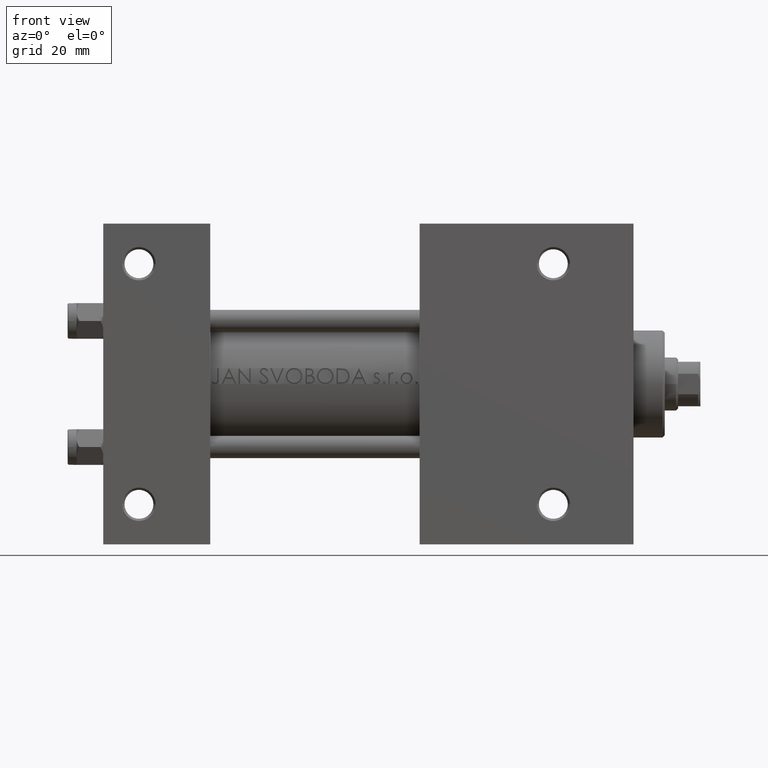
[diagram: clean part render]
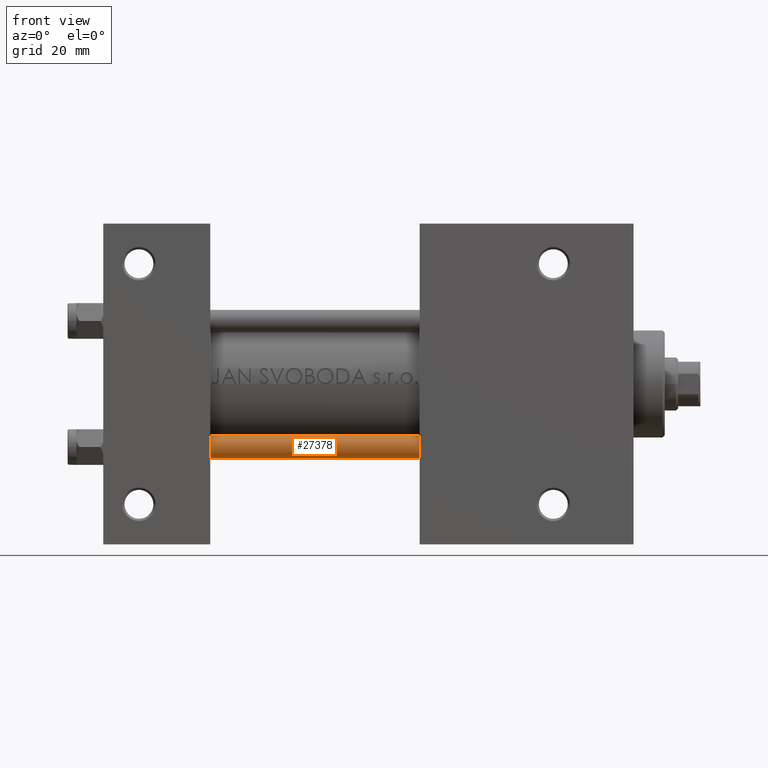
[diagram: same view with one face highlighted and labeled with its STEP entity id]
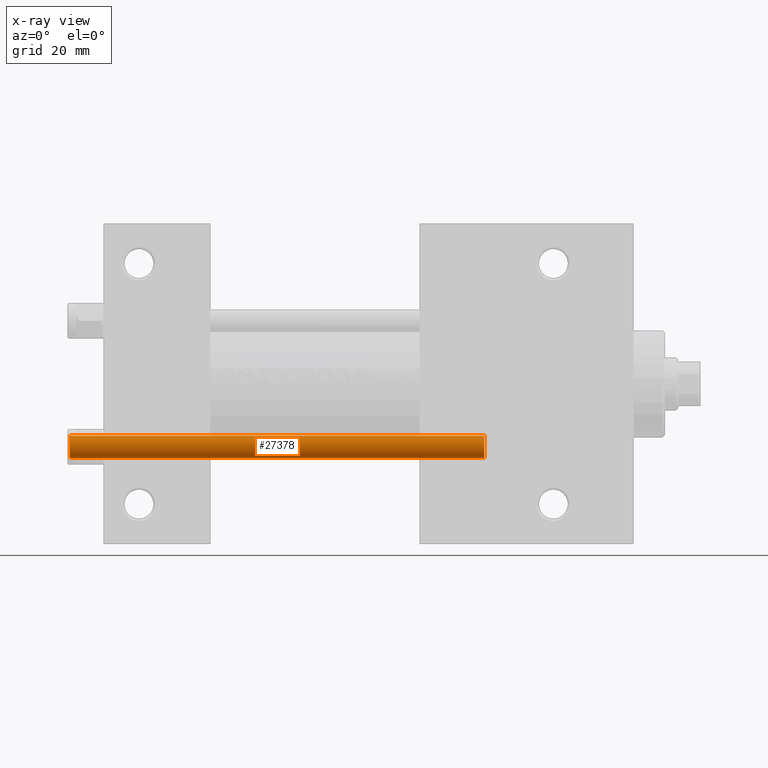
[diagram: x-ray of the same camera — body ghosted, the highlighted face saturated]
A machine part, front view. The second image highlights one B-rep face of the part: STEP entity #27378.
The next image is the same camera in x-ray: the body ghosted, the highlighted face saturated — about 0% of this face is hidden behind the body in this view.
In plain terms, the highlighted cylindrical surface (edge-blend (fillet) strip) has radius 2.5 mm, axis along (-1, 0, 0).
Its self-contained STEP definition (entity closure, byte-faithful):
#243 = CARTESIAN_POINT ( 'NONE',  ( 0.000000000000000000, 0.000000000000000000, 94.00000000000000000 ) ) ;
#715 = CYLINDRICAL_SURFACE ( 'NONE', #46674, 2.500000000000000000 ) ;
#1252 = CARTESIAN_POINT ( 'NONE',  ( -2.500000000000000000, 0.000000000000000000, 94.00000000000000000 ) ) ;
#2686 = CARTESIAN_POINT ( 'NONE',  ( -2.500000000000000000, 0.000000000000000000, 93.50000000000001421 ) ) ;
#3548 = CARTESIAN_POINT ( 'NONE',  ( 2.500000000000000000, 3.061616997868383141E-16, 0.5000000000000004441 ) ) ;
#4022 = VECTOR ( 'NONE', #8049, 1000.000000000000000 ) ;
#4719 = DIRECTION ( 'NONE',  ( 0.000000000000000000, 0.000000000000000000, -1.000000000000000000 ) ) ;
#5133 = LINE ( 'NONE', #34453, #4022 ) ;
#5149 = EDGE_CURVE ( 'NONE', #36744, #21118, #7593, .T. ) ;
#5241 = EDGE_LOOP ( 'NONE', ( #44114, #36915, #36989, #42235 ) ) ;
#7464 = AXIS2_PLACEMENT_3D ( 'NONE', #45070, #4719, #19397 ) ;
#7593 = CIRCLE ( 'NONE', #29078, 2.500000000000000000 ) ;
#8049 = DIRECTION ( 'NONE',  ( -0.000000000000000000, -0.000000000000000000, -1.000000000000000000 ) ) ;
#9391 = EDGE_CURVE ( 'NONE', #18501, #21118, #34181, .T. ) ;
#10159 = CARTESIAN_POINT ( 'NONE',  ( 2.500000000000000000, 3.061616997868383141E-16, 93.50000000000001421 ) ) ;
#11458 = VERTEX_POINT ( 'NONE', #10159 ) ;
#12034 = FACE_OUTER_BOUND ( 'NONE', #5241, .T. ) ;
#15936 = DIRECTION ( 'NONE',  ( -0.000000000000000000, -0.000000000000000000, -1.000000000000000000 ) ) ;
#18501 = VERTEX_POINT ( 'NONE', #2686 ) ;
#18548 = DIRECTION ( 'NONE',  ( -0.000000000000000000, -0.000000000000000000, -1.000000000000000000 ) ) ;
#19397 = DIRECTION ( 'NONE',  ( 1.000000000000000000, 0.000000000000000000, 0.000000000000000000 ) ) ;
#21118 = VERTEX_POINT ( 'NONE', #28385 ) ;
#21307 = CIRCLE ( 'NONE', #7464, 2.500000000000000000 ) ;
#21829 = DIRECTION ( 'NONE',  ( -0.000000000000000000, -0.000000000000000000, 1.000000000000000000 ) ) ;
#24195 = EDGE_CURVE ( 'NONE', #18501, #11458, #21307, .T. ) ;
#25185 = CARTESIAN_POINT ( 'NONE',  ( 0.000000000000000000, 0.000000000000000000, 0.5000000000000004441 ) ) ;
#27378 = ADVANCED_FACE ( 'NONE', ( #12034 ), #715, .T. ) ;
#28385 = CARTESIAN_POINT ( 'NONE',  ( -2.500000000000000000, 0.000000000000000000, 0.5000000000000004441 ) ) ;
#29078 = AXIS2_PLACEMENT_3D ( 'NONE', #25185, #21829, #39118 ) ;
#34181 = LINE ( 'NONE', #1252, #40720 ) ;
#34453 = CARTESIAN_POINT ( 'NONE',  ( 2.500000000000000000, 3.061616997868383141E-16, 94.00000000000000000 ) ) ;
#36744 = VERTEX_POINT ( 'NONE', #3548 ) ;
#36915 = ORIENTED_EDGE ( 'NONE', *, *, #41167, .T. ) ;
#36989 = ORIENTED_EDGE ( 'NONE', *, *, #5149, .T. ) ;
#39118 = DIRECTION ( 'NONE',  ( 1.000000000000000000, 0.000000000000000000, 0.000000000000000000 ) ) ;
#40720 = VECTOR ( 'NONE', #15936, 1000.000000000000000 ) ;
#41095 = DIRECTION ( 'NONE',  ( -1.000000000000000000, 0.000000000000000000, 0.000000000000000000 ) ) ;
#41167 = EDGE_CURVE ( 'NONE', #11458, #36744, #5133, .T. ) ;
#42235 = ORIENTED_EDGE ( 'NONE', *, *, #9391, .F. ) ;
#44114 = ORIENTED_EDGE ( 'NONE', *, *, #24195, .T. ) ;
#45070 = CARTESIAN_POINT ( 'NONE',  ( 0.000000000000000000, 0.000000000000000000, 93.50000000000001421 ) ) ;
#46674 = AXIS2_PLACEMENT_3D ( 'NONE', #243, #18548, #41095 ) ;